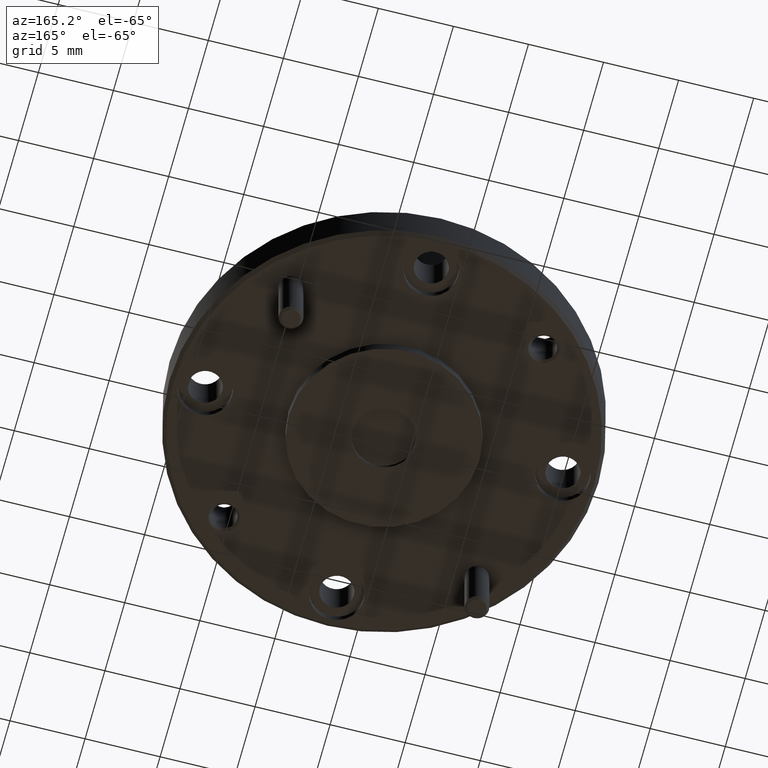
[diagram: clean part render]
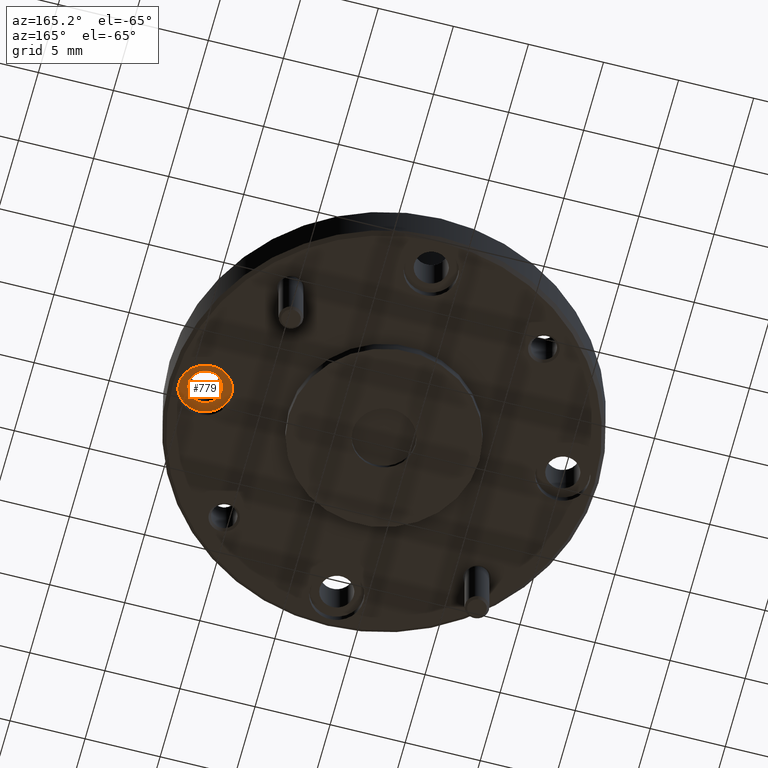
[diagram: same view with one face highlighted and labeled with its STEP entity id]
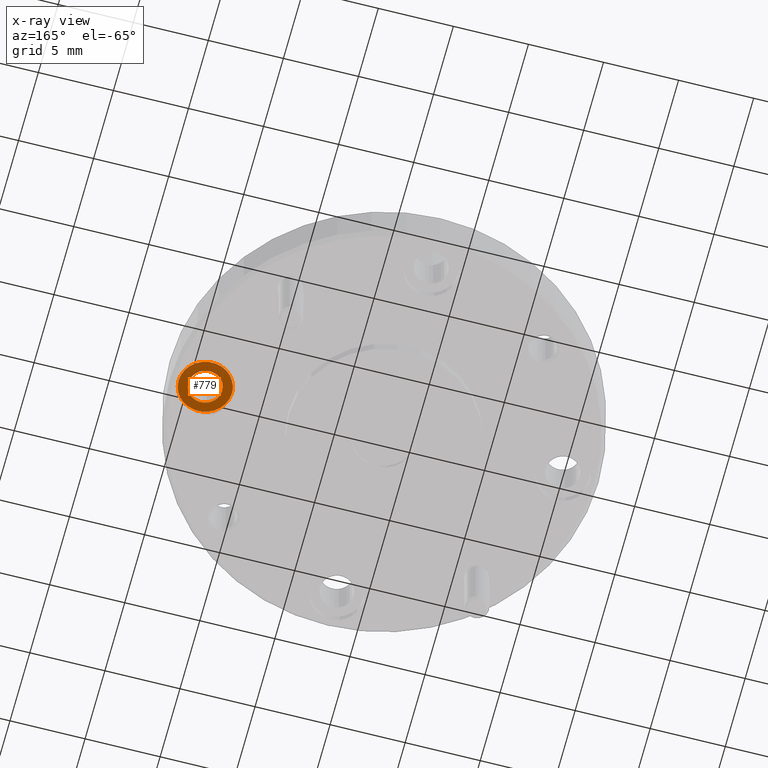
[diagram: x-ray of the same camera — body ghosted, the highlighted face saturated]
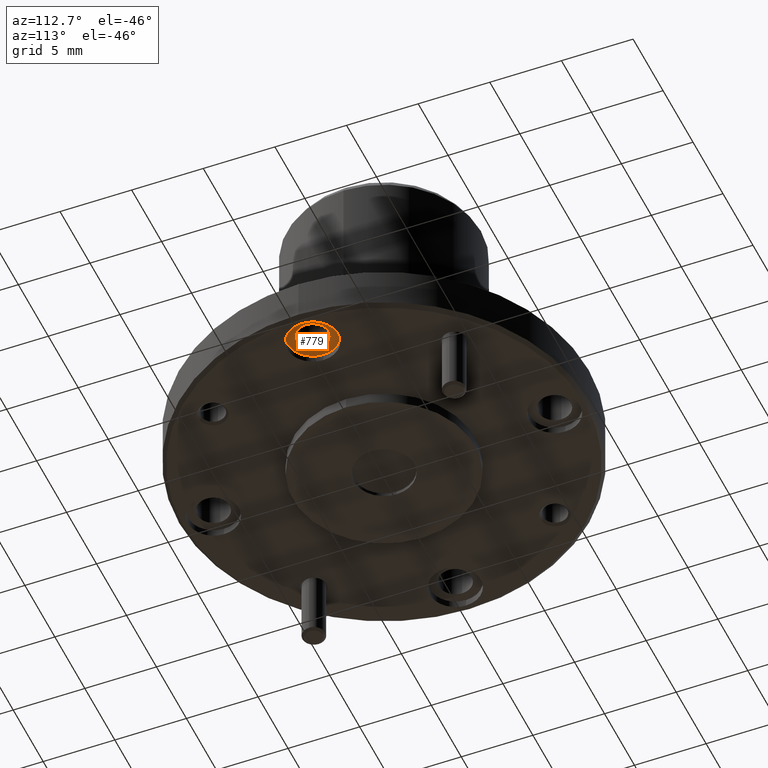
[diagram: same view with one face highlighted and labeled with its STEP entity id]
A machine part, auxiliary view. The second image highlights one B-rep face of the part: STEP entity #779.
The next image is the same camera in x-ray: the body ghosted, the highlighted face saturated — about 0% of this face is hidden behind the body in this view.
A second angle (auxiliary view) of the same face is appended — the face is thin or edge-on in the first view.
In plain terms, the highlighted planar face has unit normal (0, 0, -1).
Its self-contained STEP definition (entity closure, byte-faithful):
#64 = EDGE_LOOP ( 'NONE', ( #1404, #411 ) ) ;
#148 = CIRCLE ( 'NONE', #1886, 0.04449999999999975500 ) ;
#238 = DIRECTION ( 'NONE',  ( -1.000000000000000000, 0.0000000000000000000, 0.0000000000000000000 ) ) ;
#266 = DIRECTION ( 'NONE',  ( -1.000000000000000000, 0.0000000000000000000, 0.0000000000000000000 ) ) ;
#327 = DIRECTION ( 'NONE',  ( -0.0000000000000000000, -0.0000000000000000000, 1.000000000000000000 ) ) ;
#379 = CARTESIAN_POINT ( 'NONE',  ( 0.5200240373676103800, 0.5322466351666983500, 0.3453271406262705100 ) ) ;
#411 = ORIENTED_EDGE ( 'NONE', *, *, #1729, .T. ) ;
#418 = CIRCLE ( 'NONE', #1797, 0.04449999999999975500 ) ;
#549 = DIRECTION ( 'NONE',  ( -0.0000000000000000000, -0.0000000000000000000, 1.000000000000000000 ) ) ;
#561 = CARTESIAN_POINT ( 'NONE',  ( 0.5200240373676103800, 0.5322466351666983500, 0.3453271406262705100 ) ) ;
#577 = VERTEX_POINT ( 'NONE', #1922 ) ;
#606 = VERTEX_POINT ( 'NONE', #691 ) ;
#647 = CARTESIAN_POINT ( 'NONE',  ( 0.5200240373676103800, 0.5322466351666983500, 0.3453271406262705100 ) ) ;
#656 = ORIENTED_EDGE ( 'NONE', *, *, #1483, .T. ) ;
#691 = CARTESIAN_POINT ( 'NONE',  ( 0.5645240373676101400, 0.5322466351666983500, 0.3453271406262705100 ) ) ;
#733 = DIRECTION ( 'NONE',  ( 0.0000000000000000000, 0.0000000000000000000, -1.000000000000000000 ) ) ;
#762 = CARTESIAN_POINT ( 'NONE',  ( 0.5200240373676103800, 0.5322466351666983500, 0.3453271406262705100 ) ) ;
#779 = ADVANCED_FACE ( 'NONE', ( #781, #1526 ), #1135, .T. ) ;
#781 = FACE_OUTER_BOUND ( 'NONE', #64, .T. ) ;
#796 = CIRCLE ( 'NONE', #1535, 0.07000000000000000700 ) ;
#879 = DIRECTION ( 'NONE',  ( -1.000000000000000000, 0.0000000000000000000, 0.0000000000000000000 ) ) ;
#944 = CARTESIAN_POINT ( 'NONE',  ( 0.4755240373676106700, 0.5322466351666983500, 0.3453271406262705100 ) ) ;
#946 = DIRECTION ( 'NONE',  ( -1.000000000000000000, 0.0000000000000000000, 0.0000000000000000000 ) ) ;
#1080 = ORIENTED_EDGE ( 'NONE', *, *, #1739, .T. ) ;
#1081 = EDGE_CURVE ( 'NONE', #1405, #577, #1728, .T. ) ;
#1120 = DIRECTION ( 'NONE',  ( 0.0000000000000000000, 0.0000000000000000000, -1.000000000000000000 ) ) ;
#1135 = PLANE ( 'NONE',  #1194 ) ;
#1148 = EDGE_LOOP ( 'NONE', ( #656, #1080 ) ) ;
#1194 = AXIS2_PLACEMENT_3D ( 'NONE', #1307, #1120, #1462 ) ;
#1227 = DIRECTION ( 'NONE',  ( 0.0000000000000000000, 0.0000000000000000000, -1.000000000000000000 ) ) ;
#1307 = CARTESIAN_POINT ( 'NONE',  ( 0.5200240373676103800, 0.5322466351666983500, 0.3453271406262705100 ) ) ;
#1404 = ORIENTED_EDGE ( 'NONE', *, *, #1081, .T. ) ;
#1405 = VERTEX_POINT ( 'NONE', #1868 ) ;
#1462 = DIRECTION ( 'NONE',  ( -1.000000000000000000, 0.0000000000000000000, -0.0000000000000000000 ) ) ;
#1483 = EDGE_CURVE ( 'NONE', #2025, #606, #418, .T. ) ;
#1526 = FACE_BOUND ( 'NONE', #1148, .T. ) ;
#1535 = AXIS2_PLACEMENT_3D ( 'NONE', #561, #733, #879 ) ;
#1694 = AXIS2_PLACEMENT_3D ( 'NONE', #762, #1227, #266 ) ;
#1728 = CIRCLE ( 'NONE', #1694, 0.07000000000000000700 ) ;
#1729 = EDGE_CURVE ( 'NONE', #577, #1405, #796, .T. ) ;
#1739 = EDGE_CURVE ( 'NONE', #606, #2025, #148, .T. ) ;
#1797 = AXIS2_PLACEMENT_3D ( 'NONE', #647, #327, #946 ) ;
#1868 = CARTESIAN_POINT ( 'NONE',  ( 0.4500240373676104300, 0.5322466351666983500, 0.3453271406262705100 ) ) ;
#1886 = AXIS2_PLACEMENT_3D ( 'NONE', #379, #549, #238 ) ;
#1922 = CARTESIAN_POINT ( 'NONE',  ( 0.5900240373676104400, 0.5322466351666983500, 0.3453271406262705100 ) ) ;
#2025 = VERTEX_POINT ( 'NONE', #944 ) ;